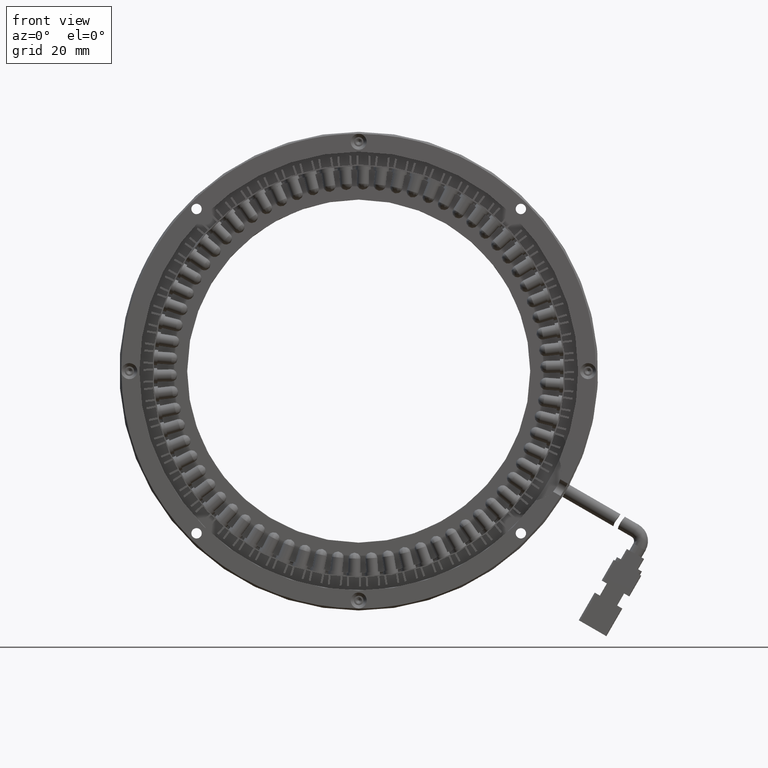
[diagram: clean part render]
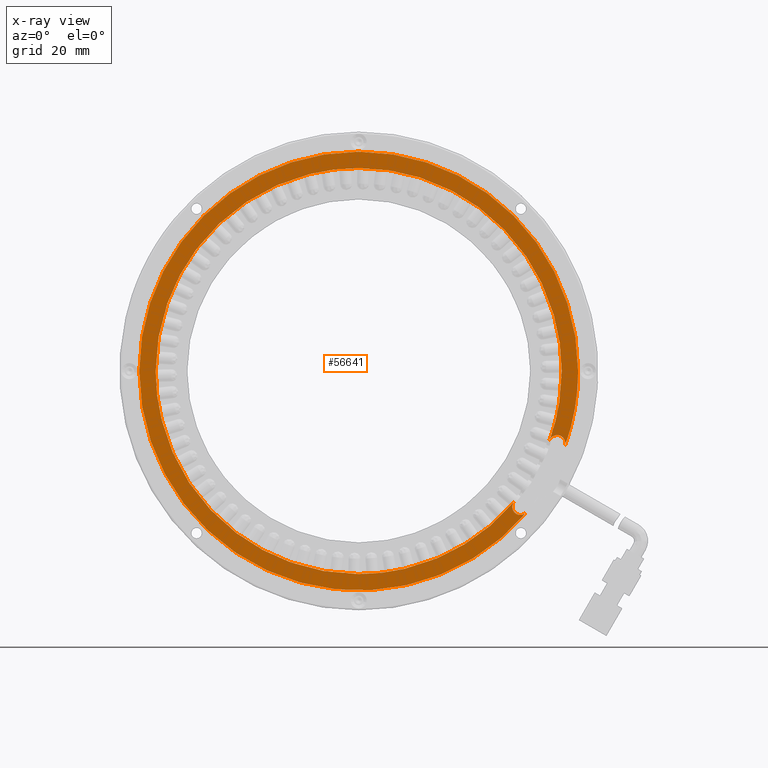
[diagram: x-ray — body ghosted, one internal face saturated and labeled with its STEP entity id]
A machine part, front view, then the same camera in x-ray: the body is ghosted and one INTERNAL B-rep face — a face not visible from any outside direction — is saturated and labeled: STEP entity #56641.
In plain terms, the highlighted planar face has unit normal (0, -1, 0).
Its self-contained STEP definition (entity closure, byte-faithful):
#64 = EDGE_CURVE ( 'NONE', #57160, #654, #15992, .T. ) ;
#654 = VERTEX_POINT ( 'NONE', #15483 ) ;
#1496 = CARTESIAN_POINT ( 'NONE',  ( 88.91167597810736800, 26.51889671361999800, -39.25409263351545500 ) ) ;
#1620 = CARTESIAN_POINT ( 'NONE',  ( 105.7969494481962400, 26.51889671361999800, -16.09159333941204700 ) ) ;
#1715 = CARTESIAN_POINT ( 'NONE',  ( 56.45624510954652200, 26.51889671361703900, -50.89999999999999900 ) ) ;
#1724 = EDGE_CURVE ( 'NONE', #13976, #8057, #43283, .T. ) ;
#1733 = EDGE_CURVE ( 'NONE', #16982, #17960, #57884, .T. ) ;
#2255 = EDGE_CURVE ( 'NONE', #13976, #7872, #56747, .T. ) ;
#2461 = ORIENTED_EDGE ( 'NONE', *, *, #8498, .T. ) ;
#2920 = CARTESIAN_POINT ( 'NONE',  ( 106.3261792178825700, 26.51889671361999800, -10.29540515301082200 ) ) ;
#3148 = CARTESIAN_POINT ( 'NONE',  ( 95.32237032638940400, 26.51889671362000200, -32.86749842980808000 ) ) ;
#3467 = CARTESIAN_POINT ( 'NONE',  ( 25.40616750947226200, 26.51889671361999100, 40.46986761288341900 ) ) ;
#3584 = CARTESIAN_POINT ( 'NONE',  ( 108.2629940726218200, 26.51889671361625000, -18.10996659951811300 ) ) ;
#3980 = ORIENTED_EDGE ( 'NONE', *, *, #54321, .F. ) ;
#4871 = CARTESIAN_POINT ( 'NONE',  ( 10.70644750498303900, 26.51889671361999800, -22.55824240564128000 ) ) ;
#6294 = VERTEX_POINT ( 'NONE', #54013 ) ;
#6437 = EDGE_CURVE ( 'NONE', #56907, #53072, #30428, .T. ) ;
#6511 = CARTESIAN_POINT ( 'NONE',  ( 84.44530148395654100, 26.51889671361999800, -42.55410091418872300 ) ) ;
#6634 = CARTESIAN_POINT ( 'NONE',  ( 106.2129693801686300, 26.51889671361549400, -16.05996658908999900 ) ) ;
#7268 = CARTESIAN_POINT ( 'NONE',  ( 107.3562518457098800, 26.51889671361706700, 4.670248026143931300E-010 ) ) ;
#7323 = CARTESIAN_POINT ( 'NONE',  ( 107.3562008130526700, 26.51889671361999800, 1.666455289235170100 ) ) ;
#7335 = CARTESIAN_POINT ( 'NONE',  ( 107.2744866105402800, 26.51889671361999800, 3.331847257112134000 ) ) ;
#7459 = CARTESIAN_POINT ( 'NONE',  ( 106.9479367558927800, 26.51889671362000200, 6.646161897768612500 ) ) ;
#7476 = CARTESIAN_POINT ( 'NONE',  ( 106.7029969966896200, 26.51889671361999800, 8.297855721284209500 ) ) ;
#7616 = CARTESIAN_POINT ( 'NONE',  ( 106.0534228182083900, 26.51889671362000200, 11.56325347238492900 ) ) ;
#7691 = CARTESIAN_POINT ( 'NONE',  ( 105.6475732304488000, 26.51889671361999500, 13.18320469791620500 ) ) ;
#7830 = CARTESIAN_POINT ( 'NONE',  ( 104.6809622507520700, 26.51889671362000200, 16.36981925736114700 ) ) ;
#7872 = VERTEX_POINT ( 'NONE', #30927 ) ;
#7893 = CARTESIAN_POINT ( 'NONE',  ( 104.1188513475901900, 26.51889671361999800, 17.94038577706800900 ) ) ;
#7908 = CARTESIAN_POINT ( 'NONE',  ( 102.8437276067713200, 26.51889671362000200, 21.01895412697521700 ) ) ;
#7977 = CARTESIAN_POINT ( 'NONE',  ( 105.2387383753806300, 26.51889671361999800, -14.60417290471351100 ) ) ;
#7993 = CARTESIAN_POINT ( 'NONE',  ( 96.62844504270351800, 26.51889671361999800, -36.08560393289999300 ) ) ;
#8046 = CARTESIAN_POINT ( 'NONE',  ( 102.1322153879976300, 26.51889671361999500, 22.52331600292138300 ) ) ;
#8057 = VERTEX_POINT ( 'NONE', #51946 ) ;
#8109 = CARTESIAN_POINT ( 'NONE',  ( 100.5595965003141400, 26.51889671361999500, 25.46536390588529700 ) ) ;
#8184 = CARTESIAN_POINT ( 'NONE',  ( 99.70370530092894500, 26.51889671361999800, 26.89335504278859200 ) ) ;
#8329 = CARTESIAN_POINT ( 'NONE',  ( 5.556245109549984700, 26.51889671361847100, -5.260106464506403600E-012 ) ) ;
#8331 = CARTESIAN_POINT ( 'NONE',  ( 97.85275939107180000, 26.51889671362000200, 29.66327168743788400 ) ) ;
#8389 = CARTESIAN_POINT ( 'NONE',  ( 96.85871171428804900, 26.51889671361999800, 31.00377232226369600 ) ) ;
#8413 = B_SPLINE_CURVE_WITH_KNOTS ( 'NONE', 3,
 ( #8329, #42899, #47941, #18324, #52906, #23230, #57871, #28192, #62812, #33176, #3467, #38151, #8536, #43103, #13547, #48150, #18545, #53119, #23440, #58088 ),
 .UNSPECIFIED., .F., .F.,
 ( 4, 2, 2, 2, 2, 2, 2, 2, 2, 4 ),
 ( 0.5000000000000000000, 0.5625000000000000000, 0.6250000000000000000, 0.6875000000000000000, 0.7500000000000000000, 0.8125000000000000000, 0.8750000000000000000, 0.9375000000000000000, 0.9687500000000000000, 1.000000000000000000 ),
 .UNSPECIFIED. ) ;
#8461 = CARTESIAN_POINT ( 'NONE',  ( 94.74633405153107900, 26.51889671362000200, 33.57758869319515300 ) ) ;
#8498 = EDGE_CURVE ( 'NONE', #54955, #16982, #38663, .T. ) ;
#8524 = CARTESIAN_POINT ( 'NONE',  ( 93.62473146255430800, 26.51889671361999800, 34.81509095276935300 ) ) ;
#8536 = CARTESIAN_POINT ( 'NONE',  ( 33.89803467176491100, 26.51889671361999800, 45.74980730221788900 ) ) ;
#8539 = CARTESIAN_POINT ( 'NONE',  ( 91.27043481988675900, 26.51889671361999800, 37.16939900917218200 ) ) ;
#8593 = CARTESIAN_POINT ( 'NONE',  ( 90.03346181228931800, 26.51889671362000200, 38.29036378274679500 ) ) ;
#8658 = CARTESIAN_POINT ( 'NONE',  ( 108.2213692306013500, 26.51889671361999800, -18.58573237121041500 ) ) ;
#8676 = ORIENTED_EDGE ( 'NONE', *, *, #16716, .T. ) ;
#8678 = CARTESIAN_POINT ( 'NONE',  ( 87.45868745237682200, 26.51889671362000600, 40.40351379886799100 ) ) ;
#8738 = CARTESIAN_POINT ( 'NONE',  ( 86.12016373316362200, 26.51889671362000200, 41.39609968301202500 ) ) ;
#8753 = CARTESIAN_POINT ( 'NONE',  ( 83.34815160613703700, 26.51889671361999800, 43.24833604363151100 ) ) ;
#8808 = CARTESIAN_POINT ( 'NONE',  ( 81.92029611412967000, 26.51889671362000200, 44.10415437209533700 ) ) ;
#8822 = CARTESIAN_POINT ( 'NONE',  ( 78.98088627312654400, 26.51889671362000200, 45.67519132533117000 ) ) ;
#8902 = CARTESIAN_POINT ( 'NONE',  ( 77.47361066575641100, 26.51889671362000600, 46.38820226874730700 ) ) ;
#9048 = CARTESIAN_POINT ( 'NONE',  ( 74.39672999791444900, 26.51889671361999800, 47.66257905183898200 ) ) ;
#9252 = CARTESIAN_POINT ( 'NONE',  ( 72.82459506337231400, 26.51889671362000200, 48.22517476861667500 ) ) ;
#9320 = CARTESIAN_POINT ( 'NONE',  ( 69.63857196180636300, 26.51889671361999500, 49.19161618714368700 ) ) ;
#9398 = CARTESIAN_POINT ( 'NONE',  ( 68.01859964645936400, 26.51889671361999500, 49.59733465117089000 ) ) ;
#9535 = CARTESIAN_POINT ( 'NONE',  ( 64.75260245585306500, 26.51889671361999500, 50.24703753962068500 ) ) ;
#9613 = CARTESIAN_POINT ( 'NONE',  ( 63.10249768488622400, 26.51889671361999500, 50.49167047696528200 ) ) ;
#9677 = CARTESIAN_POINT ( 'NONE',  ( 56.45624510953188500, 26.51889671361704600, 50.90000000000001300 ) ) ;
#9709 = CARTESIAN_POINT ( 'NONE',  ( 49.80849226404254900, 26.51889671362000600, -50.49155327858623800 ) ) ;
#9925 = CARTESIAN_POINT ( 'NONE',  ( 7.184622262506801200, 26.51889671361999800, -13.19944935610017100 ) ) ;
#10174 = CARTESIAN_POINT ( 'NONE',  ( 59.78654486201143200, 26.51889671362000600, 50.81833409539307700 ) ) ;
#10460 = CARTESIAN_POINT ( 'NONE',  ( 58.12378614070481600, 26.51889671362000600, 50.90000000000001300 ) ) ;
#10760 = CARTESIAN_POINT ( 'NONE',  ( 5.556245109549984700, 26.51889671361847100, -5.260106464506403600E-012 ) ) ;
#11427 = CARTESIAN_POINT ( 'NONE',  ( 104.3584792415676800, 26.51889671361999800, -17.21133734924919900 ) ) ;
#11529 = CARTESIAN_POINT ( 'NONE',  ( 79.64621202074329200, 26.51889671361999800, -45.34825482861585000 ) ) ;
#11665 = EDGE_LOOP ( 'NONE', ( #38328, #52175, #2461, #18839, #8676, #3980, #56246, #15040, #63176, #24809, #54303, #42104, #60865 ) ) ;
#11872 = B_SPLINE_CURVE_WITH_KNOTS ( 'NONE', 3,
 ( #21286, #50884, #60866, #31160, #1496, #36143, #6511, #41093, #11529, #46153, #16524, #51107, #21497, #56073, #26419, #61071, #31370, #1715 ),
 .UNSPECIFIED., .F., .F.,
 ( 4, 2, 2, 2, 2, 2, 2, 2, 4 ),
 ( 0.0000000000000000000, 0.1250000000000000000, 0.2500000000000000000, 0.3750000000000000000, 0.5000000000000000000, 0.6250000000000000000, 0.7500000000000000000, 0.8750000000000000000, 1.000000000000000000 ),
 .UNSPECIFIED. ) ;
#12986 = CARTESIAN_POINT ( 'NONE',  ( 104.2865995075451200, 26.51889671361615100, -17.40882529527371900 ) ) ;
#13547 = CARTESIAN_POINT ( 'NONE',  ( 43.25682899989948300, 26.51889671362000600, 49.27162612192815100 ) ) ;
#13858 = B_SPLINE_CURVE_WITH_KNOTS ( 'NONE', 3,
 ( #47380, #52355, #27669, #62261, #32624, #2920, #37572, #7977, #42570, #12986 ),
 .UNSPECIFIED., .F., .F.,
 ( 4, 2, 2, 2, 4 ),
 ( 0.8181776711582123800, 0.8636332533686592600, 0.9090888355791062500, 0.9545444177895531200, 1.000000000000000000 ),
 .UNSPECIFIED. ) ;
#13976 = VERTEX_POINT ( 'NONE', #21953 ) ;
#14638 = CARTESIAN_POINT ( 'NONE',  ( 56.45624510954652200, 26.51889671361703900, -50.89999999999999900 ) ) ;
#14727 = CARTESIAN_POINT ( 'NONE',  ( 43.25678297674848200, 26.51889671362000600, -49.27168707802127300 ) ) ;
#14938 = CARTESIAN_POINT ( 'NONE',  ( 5.556277853956411100, 26.51889671362000200, -3.333375449674135000 ) ) ;
#15040 = ORIENTED_EDGE ( 'NONE', *, *, #1724, .F. ) ;
#15300 = CARTESIAN_POINT ( 'NONE',  ( 54.78937442624786800, 26.51889671362000200, -50.89999999999999100 ) ) ;
#15483 = CARTESIAN_POINT ( 'NONE',  ( 107.3562518457098800, 26.51889671361706700, 4.670248026143931300E-010 ) ) ;
#15788 = CARTESIAN_POINT ( 'NONE',  ( 56.45624510954999000, 26.51889671361700400, 0.0000000000000000000 ) ) ;
#15992 = B_SPLINE_CURVE_WITH_KNOTS ( 'NONE', 3,
 ( #9677, #10460, #10174, #9613, #9535, #9398, #9320, #9252, #9048, #8902, #8822, #8808, #8753, #8738, #8678, #8593, #8539, #8524, #8461, #8389, #8331, #8184, #8109, #8046, #7908, #7893, #7830, #7691, #7616, #7476, #7459, #7335, #7323, #7268 ),
 .UNSPECIFIED., .F., .F.,
 ( 4, 2, 2, 2, 2, 2, 2, 2, 2, 2, 2, 2, 2, 2, 2, 2, 4 ),
 ( 0.0000000000000000000, 0.05113610444738812800, 0.1022722088947764800, 0.1534083133421648100, 0.2045444177895531800, 0.2556805222369415400, 0.3068166266843298500, 0.3579527311317182200, 0.4090888355791065800, 0.4602249400264948300, 0.5113610444738830900, 0.5624971489212713400, 0.6136332533686594800, 0.6647693578160477300, 0.7159054622634358800, 0.7670415667108242400, 0.8181776711582123800 ),
 .UNSPECIFIED. ) ;
#16281 = B_SPLINE_CURVE_WITH_KNOTS ( 'NONE', 3,
 ( #3584, #53029, #8658, #43230 ),
 .UNSPECIFIED., .F., .F.,
 ( 4, 4 ),
 ( 0.8182654502144257600, 1.000000000000000000 ),
 .UNSPECIFIED. ) ;
#16524 = CARTESIAN_POINT ( 'NONE',  ( 74.57145591769544500, 26.51889671361999800, -47.60333936523537100 ) ) ;
#16716 = EDGE_CURVE ( 'NONE', #17960, #29081, #16281, .T. ) ;
#16757 = CARTESIAN_POINT ( 'NONE',  ( 97.01829837268245200, 26.51889671361625000, -36.08560393289998600 ) ) ;
#16850 = CARTESIAN_POINT ( 'NONE',  ( 97.31801767398215500, 26.51889671361999800, -36.08560393289999300 ) ) ;
#16982 = VERTEX_POINT ( 'NONE', #20616 ) ;
#17056 = CARTESIAN_POINT ( 'NONE',  ( 98.58868948107824800, 26.51889671361639600, -35.35331853275853600 ) ) ;
#17111 = CARTESIAN_POINT ( 'NONE',  ( 98.39651065991415600, 26.51889671361999800, -35.58234833331888300 ) ) ;
#17127 = CARTESIAN_POINT ( 'NONE',  ( 98.15526934994197500, 26.51889671362000200, -35.76726199441731800 ) ) ;
#17632 = CARTESIAN_POINT ( 'NONE',  ( 104.2865995075451200, 26.51889671361615100, -17.40882529527371900 ) ) ;
#17960 = VERTEX_POINT ( 'NONE', #33328 ) ;
#17986 = CARTESIAN_POINT ( 'NONE',  ( 95.58828173832982600, 26.51889671361999800, -35.55536931266763600 ) ) ;
#18324 = CARTESIAN_POINT ( 'NONE',  ( 7.184541814664910000, 26.51889671361999800, 13.19939738584012500 ) ) ;
#18412 = EDGE_CURVE ( 'NONE', #654, #54955, #13858, .T. ) ;
#18545 = CARTESIAN_POINT ( 'NONE',  ( 49.80832919296634000, 26.51889671361999800, 50.49150431269133300 ) ) ;
#18839 = ORIENTED_EDGE ( 'NONE', *, *, #1733, .T. ) ;
#19736 = CARTESIAN_POINT ( 'NONE',  ( 33.89797764238963400, 26.51889671362000200, -45.74985810894369800 ) ) ;
#20616 = CARTESIAN_POINT ( 'NONE',  ( 106.2129693801686300, 26.51889671361549400, -16.05996658908999900 ) ) ;
#20793 = DIRECTION ( 'NONE',  ( 1.000000000000000000, 6.308085367188390000E-017, 0.0000000000000000000 ) ) ;
#21286 = CARTESIAN_POINT ( 'NONE',  ( 95.44790726429383200, 26.51889671361582800, -32.71788933304571900 ) ) ;
#21407 = CARTESIAN_POINT ( 'NONE',  ( 104.4588099106009100, 26.51889671362000200, -17.02863101656479100 ) ) ;
#21497 = CARTESIAN_POINT ( 'NONE',  ( 69.28135844239513100, 26.51889671361999800, -49.29254760452393900 ) ) ;
#21953 = CARTESIAN_POINT ( 'NONE',  ( 98.58868948107824800, 26.51889671361639600, -35.35331853275853600 ) ) ;
#21994 = PLANE ( 'NONE',  #50702 ) ;
#22276 = EDGE_CURVE ( 'NONE', #53072, #57160, #8413, .T. ) ;
#22407 = CARTESIAN_POINT ( 'NONE',  ( 56.45624510954999000, 26.51889671361700400, 0.0000000000000000000 ) ) ;
#22913 = CARTESIAN_POINT ( 'NONE',  ( 94.99566523257891500, 26.51889671361999800, -34.54901367626943900 ) ) ;
#23230 = CARTESIAN_POINT ( 'NONE',  ( 10.70635846373137800, 26.51889671361999800, 22.55820712775216200 ) ) ;
#23440 = CARTESIAN_POINT ( 'NONE',  ( 54.78904028817538600, 26.51889671362000200, 50.90000000000001300 ) ) ;
#24618 = CARTESIAN_POINT ( 'NONE',  ( 25.40607387520768200, 26.51889671362000900, -40.46988774913664600 ) ) ;
#24809 = ORIENTED_EDGE ( 'NONE', *, *, #28459, .T. ) ;
#26331 = CARTESIAN_POINT ( 'NONE',  ( 104.8651616375936000, 26.51889671361999800, -16.55119259836519400 ) ) ;
#26419 = CARTESIAN_POINT ( 'NONE',  ( 63.83898750012691200, 26.51889671361999800, -50.39577935919173500 ) ) ;
#26709 = EDGE_CURVE ( 'NONE', #6294, #56907, #11872, .T. ) ;
#26957 = DIRECTION ( 'NONE',  ( 0.0000000000000000000, -1.000000000000000000, 0.0000000000000000000 ) ) ;
#27393 = DIRECTION ( 'NONE',  ( 1.000000000000000000, 6.308085367188390000E-017, 0.0000000000000000000 ) ) ;
#27669 = CARTESIAN_POINT ( 'NONE',  ( 107.2917835663834700, 26.51889671362000200, -2.959691800880913400 ) ) ;
#27851 = CIRCLE ( 'NONE', #39015, 55.00000000000000000 ) ;
#27870 = CARTESIAN_POINT ( 'NONE',  ( 95.01120421857626800, 26.51889671361999800, -33.57493728174080900 ) ) ;
#28192 = CARTESIAN_POINT ( 'NONE',  ( 15.98631760021237000, 26.51889671361999800, 31.05011762157835900 ) ) ;
#28459 = EDGE_CURVE ( 'NONE', #7872, #6294, #63684, .T. ) ;
#28744 = EDGE_CURVE ( 'NONE', #8057, #55232, #27851, .T. ) ;
#29081 = VERTEX_POINT ( 'NONE', #43784 ) ;
#29601 = CARTESIAN_POINT ( 'NONE',  ( 18.10741077590907400, 26.51889671361999800, -33.63468229911563200 ) ) ;
#30428 = B_SPLINE_CURVE_WITH_KNOTS ( 'NONE', 3,
 ( #54854, #15300, #60083, #9709, #44305, #14727, #49312, #19736, #54297, #24618, #59301, #29601, #64195, #34554, #4871, #39528, #9925, #44530, #14938, #49517 ),
 .UNSPECIFIED., .F., .F.,
 ( 4, 2, 2, 2, 2, 2, 2, 2, 2, 4 ),
 ( 0.0000000000000000000, 0.03124999999999993100, 0.06249999999999986100, 0.1249999999999998900, 0.1874999999999999200, 0.2499999999999999400, 0.3124999999999999400, 0.3750000000000000000, 0.4375000000000000000, 0.5000000000000000000 ),
 .UNSPECIFIED. ) ;
#30927 = CARTESIAN_POINT ( 'NONE',  ( 97.01829837268245200, 26.51889671361625000, -36.08560393289998600 ) ) ;
#31160 = CARTESIAN_POINT ( 'NONE',  ( 90.31626377400986900, 26.51889671361999800, -38.04920325931077200 ) ) ;
#31281 = CARTESIAN_POINT ( 'NONE',  ( 105.3960955342362800, 26.51889671361999800, -16.21810034070021800 ) ) ;
#31370 = CARTESIAN_POINT ( 'NONE',  ( 58.30904260226729700, 26.51889671362000200, -50.89999999999999900 ) ) ;
#32624 = CARTESIAN_POINT ( 'NONE',  ( 106.8401199260077700, 26.51889671361999800, -7.380743873133185100 ) ) ;
#32854 = CARTESIAN_POINT ( 'NONE',  ( 95.22037118512243100, 26.51889671361999800, -33.03152639169043400 ) ) ;
#33176 = CARTESIAN_POINT ( 'NONE',  ( 22.82151335499334300, 26.51889671361999100, 38.34878950799058800 ) ) ;
#33328 = CARTESIAN_POINT ( 'NONE',  ( 108.2629940726218200, 26.51889671361625000, -18.10996659951811300 ) ) ;
#34258 = CARTESIAN_POINT ( 'NONE',  ( 108.0037992282614700, 26.51889671361999800, -17.07644587213456000 ) ) ;
#34554 = CARTESIAN_POINT ( 'NONE',  ( 12.28247187426224900, 26.51889671361999500, -25.50691487160292000 ) ) ;
#36143 = CARTESIAN_POINT ( 'NONE',  ( 85.97272771408704300, 26.51889671361999800, -41.50927740812717600 ) ) ;
#36178 = CARTESIAN_POINT ( 'NONE',  ( 108.2629940726218200, 26.51889671361625000, -18.10996659951811300 ) ) ;
#36262 = CARTESIAN_POINT ( 'NONE',  ( 108.2630753145470200, 26.51889671361999800, -17.84216602957619800 ) ) ;
#36268 = CARTESIAN_POINT ( 'NONE',  ( 106.0024317445241500, 26.51889671361999800, -16.05996658908999900 ) ) ;
#36381 = CARTESIAN_POINT ( 'NONE',  ( 56.45624510953188500, 26.51889671361704600, 50.90000000000001300 ) ) ;
#36387 = CARTESIAN_POINT ( 'NONE',  ( 108.2100366687376400, 26.51889671361999800, -17.57448026055307400 ) ) ;
#36457 = CARTESIAN_POINT ( 'NONE',  ( 107.8521202247297500, 26.51889671361999800, -16.84984560682197200 ) ) ;
#36567 = FACE_OUTER_BOUND ( 'NONE', #11665, .T. ) ;
#36586 = CARTESIAN_POINT ( 'NONE',  ( 107.4732465400562800, 26.51889671361999800, -16.47111114605650800 ) ) ;
#36725 = CARTESIAN_POINT ( 'NONE',  ( 107.2448028913066100, 26.51889671361999800, -16.31846984271663100 ) ) ;
#36740 = CARTESIAN_POINT ( 'NONE',  ( 106.2129693801686300, 26.51889671361549400, -16.05996658908999900 ) ) ;
#36796 = DIRECTION ( 'NONE',  ( 1.000000000000000000, 6.308085367188390000E-017, 0.0000000000000000000 ) ) ;
#36869 = DIRECTION ( 'NONE',  ( -3.154042683594195600E-017, 1.000000000000000000, -0.0000000000000000000 ) ) ;
#36884 = CARTESIAN_POINT ( 'NONE',  ( 56.45624510954999000, 26.51889671361700400, 0.0000000000000000000 ) ) ;
#37086 = CARTESIAN_POINT ( 'NONE',  ( 106.4823319166383400, 26.51889671361999800, -16.05996658908999900 ) ) ;
#37101 = CARTESIAN_POINT ( 'NONE',  ( 106.7495667950427000, 26.51889671362000200, -16.11324002181363800 ) ) ;
#37572 = CARTESIAN_POINT ( 'NONE',  ( 106.0048858447456900, 26.51889671361999800, -11.74451062858221700 ) ) ;
#37801 = CARTESIAN_POINT ( 'NONE',  ( 95.44790726429383200, 26.51889671361582800, -32.71788933304571900 ) ) ;
#38151 = CARTESIAN_POINT ( 'NONE',  ( 30.94927298822892700, 26.51889671361999800, 44.17373891951346100 ) ) ;
#38328 = ORIENTED_EDGE ( 'NONE', *, *, #64, .T. ) ;
#38663 = B_SPLINE_CURVE_WITH_KNOTS ( 'NONE', 3,
 ( #46052, #11427, #21407, #55976, #26331, #60986, #31281, #1620, #36268, #6634 ),
 .UNSPECIFIED., .F., .F.,
 ( 4, 2, 2, 2, 4 ),
 ( 0.0000000000000000000, 0.2500000000000000000, 0.5000000000000000000, 0.7500000000000000000, 1.000000000000000000 ),
 .UNSPECIFIED. ) ;
#39015 = AXIS2_PLACEMENT_3D ( 'NONE', #15788, #50356, #20793 ) ;
#39366 = CARTESIAN_POINT ( 'NONE',  ( 111.4562451095500000, 26.51889671361700700, 0.0000000000000000000 ) ) ;
#39528 = CARTESIAN_POINT ( 'NONE',  ( 8.155106304472967700, 26.51889671361999800, -16.39893100913700500 ) ) ;
#41093 = CARTESIAN_POINT ( 'NONE',  ( 81.27830641589346800, 26.51889671361999800, -44.47592752031182100 ) ) ;
#42104 = ORIENTED_EDGE ( 'NONE', *, *, #6437, .T. ) ;
#42570 = CARTESIAN_POINT ( 'NONE',  ( 104.7936675078781700, 26.51889671361999800, -16.01566741425359600 ) ) ;
#42582 = CARTESIAN_POINT ( 'NONE',  ( 97.01829837268245200, 26.51889671361625000, -36.08560393289998600 ) ) ;
#42899 = CARTESIAN_POINT ( 'NONE',  ( 5.556212365143554000, 26.51889671361999800, 3.333375449663616300 ) ) ;
#43103 = CARTESIAN_POINT ( 'NONE',  ( 40.05728213256652000, 26.51889671362000200, 48.30112910743011400 ) ) ;
#43230 = CARTESIAN_POINT ( 'NONE',  ( 108.1393392527727400, 26.51889671361639600, -18.81110788290745400 ) ) ;
#43283 = CIRCLE ( 'NONE', #59335, 55.00000000000000000 ) ;
#43784 = CARTESIAN_POINT ( 'NONE',  ( 108.1393392527727400, 26.51889671361639600, -18.81110788290745400 ) ) ;
#44305 = CARTESIAN_POINT ( 'NONE',  ( 48.16083009003381200, 26.51889671361999800, -50.24711261977888900 ) ) ;
#44530 = CARTESIAN_POINT ( 'NONE',  ( 5.883926411546610800, 26.51889671361999800, -6.660745425153272900 ) ) ;
#46052 = CARTESIAN_POINT ( 'NONE',  ( 104.2865995075451200, 26.51889671361615100, -17.40882529527371900 ) ) ;
#46153 = CARTESIAN_POINT ( 'NONE',  ( 76.28881724357131600, 26.51889671361999800, -46.91387789170980900 ) ) ;
#47380 = CARTESIAN_POINT ( 'NONE',  ( 107.3562518457098800, 26.51889671361706700, 4.670248026143931300E-010 ) ) ;
#47616 = CARTESIAN_POINT ( 'NONE',  ( 96.24538661284874800, 26.51889671362000200, -35.97374348096554500 ) ) ;
#47941 = CARTESIAN_POINT ( 'NONE',  ( 5.884006859384389700, 26.51889671362000200, 6.660797395392687100 ) ) ;
#48150 = CARTESIAN_POINT ( 'NONE',  ( 48.16080707844287900, 26.51889671361999800, 50.24714309782238800 ) ) ;
#48916 = CARTESIAN_POINT ( 'NONE',  ( 97.61406226859531900, 26.51889671361999800, -36.01980779823271200 ) ) ;
#49312 = CARTESIAN_POINT ( 'NONE',  ( 40.05733916196127400, 26.51889671361999800, -48.30107830071237600 ) ) ;
#49517 = CARTESIAN_POINT ( 'NONE',  ( 5.556245109549984700, 26.51889671361847100, -5.260106464506403600E-012 ) ) ;
#50356 = DIRECTION ( 'NONE',  ( -3.154042683594195600E-017, 1.000000000000000000, -0.0000000000000000000 ) ) ;
#50702 = AXIS2_PLACEMENT_3D ( 'NONE', #56589, #26957, #61574 ) ;
#50884 = CARTESIAN_POINT ( 'NONE',  ( 94.25717763691881100, 26.51889671361999800, -34.13694564429200500 ) ) ;
#51107 = CARTESIAN_POINT ( 'NONE',  ( 71.06357186928032400, 26.51889671361999800, -48.79414781736165500 ) ) ;
#51946 = CARTESIAN_POINT ( 'NONE',  ( 1.456245109549989100, 26.51889671361700000, 6.735557395310442600E-015 ) ) ;
#52175 = ORIENTED_EDGE ( 'NONE', *, *, #18412, .T. ) ;
#52355 = CARTESIAN_POINT ( 'NONE',  ( 107.3563099333608900, 26.51889671361999800, -1.481334884097189600 ) ) ;
#52572 = CARTESIAN_POINT ( 'NONE',  ( 95.32506958597103600, 26.51889671361999800, -35.25492906266791200 ) ) ;
#52906 = CARTESIAN_POINT ( 'NONE',  ( 8.155195345716574500, 26.51889671361999800, 16.39896628700667600 ) ) ;
#53029 = CARTESIAN_POINT ( 'NONE',  ( 108.2629685270748800, 26.51889671361999800, -18.34787773702494500 ) ) ;
#53072 = VERTEX_POINT ( 'NONE', #10760 ) ;
#53119 = CARTESIAN_POINT ( 'NONE',  ( 53.12601614058372900, 26.51889671361999800, 50.81830086253827300 ) ) ;
#54013 = CARTESIAN_POINT ( 'NONE',  ( 95.44790726429383200, 26.51889671361582800, -32.71788933304571900 ) ) ;
#54297 = CARTESIAN_POINT ( 'NONE',  ( 30.94936662251100400, 26.51889671361999800, -44.17371878327195800 ) ) ;
#54303 = ORIENTED_EDGE ( 'NONE', *, *, #26709, .T. ) ;
#54321 = EDGE_CURVE ( 'NONE', #55232, #29081, #57565, .T. ) ;
#54847 = AXIS2_PLACEMENT_3D ( 'NONE', #22407, #57030, #27393 ) ;
#54854 = CARTESIAN_POINT ( 'NONE',  ( 56.45624510954652200, 26.51889671361703900, -50.89999999999999900 ) ) ;
#54955 = VERTEX_POINT ( 'NONE', #17632 ) ;
#55232 = VERTEX_POINT ( 'NONE', #39366 ) ;
#55976 = CARTESIAN_POINT ( 'NONE',  ( 104.7143801546050700, 26.51889671361999800, -16.69538030267937900 ) ) ;
#56073 = CARTESIAN_POINT ( 'NONE',  ( 65.66468447562010600, 26.51889671361999800, -50.09438592028164500 ) ) ;
#56246 = ORIENTED_EDGE ( 'NONE', *, *, #28744, .F. ) ;
#56589 = CARTESIAN_POINT ( 'NONE',  ( 113.6891704186999900, 26.51889671361999800, -57.19999999999999600 ) ) ;
#56641 = ADVANCED_FACE ( 'NONE', ( #36567 ), #21994, .T. ) ;
#56747 = B_SPLINE_CURVE_WITH_KNOTS ( 'NONE', 3,
 ( #17056, #17111, #17127, #48916, #16850, #16757 ),
 .UNSPECIFIED., .F., .F.,
 ( 4, 2, 4 ),
 ( 0.0000000000000000000, 0.5000000000000000000, 1.000000000000000000 ),
 .UNSPECIFIED. ) ;
#56907 = VERTEX_POINT ( 'NONE', #14638 ) ;
#57030 = DIRECTION ( 'NONE',  ( -3.154042683594195600E-017, 1.000000000000000000, -0.0000000000000000000 ) ) ;
#57160 = VERTEX_POINT ( 'NONE', #36381 ) ;
#57538 = CARTESIAN_POINT ( 'NONE',  ( 94.93510078349844200, 26.51889671361999500, -34.15420115306560000 ) ) ;
#57565 = CIRCLE ( 'NONE', #54847, 55.00000000000000000 ) ;
#57871 = CARTESIAN_POINT ( 'NONE',  ( 12.28256608648485400, 26.51889671362000600, 25.50693209981170300 ) ) ;
#57884 = B_SPLINE_CURVE_WITH_KNOTS ( 'NONE', 3,
 ( #36740, #37086, #37101, #36725, #36586, #36457, #34258, #36387, #36262, #36178 ),
 .UNSPECIFIED., .F., .F.,
 ( 4, 2, 2, 2, 4 ),
 ( 0.0000000000000000000, 0.2045663625536064400, 0.4091327251072128800, 0.6136990876608192600, 0.8182654502144257600 ),
 .UNSPECIFIED. ) ;
#58088 = CARTESIAN_POINT ( 'NONE',  ( 56.45624510953188500, 26.51889671361704600, 50.90000000000001300 ) ) ;
#59301 = CARTESIAN_POINT ( 'NONE',  ( 22.82160911841152300, 26.51889671362000200, -38.34878802568606900 ) ) ;
#59335 = AXIS2_PLACEMENT_3D ( 'NONE', #36884, #36869, #36796 ) ;
#60083 = CARTESIAN_POINT ( 'NONE',  ( 53.12585306952841800, 26.51889671361999800, -50.81825189664540700 ) ) ;
#60865 = ORIENTED_EDGE ( 'NONE', *, *, #22276, .T. ) ;
#60866 = CARTESIAN_POINT ( 'NONE',  ( 92.99225552372956800, 26.51889671362000200, -35.48744807836808900 ) ) ;
#60986 = CARTESIAN_POINT ( 'NONE',  ( 105.2091137337671400, 26.51889671361999800, -16.31021719822989600 ) ) ;
#61071 = CARTESIAN_POINT ( 'NONE',  ( 60.15615057892195200, 26.51889671361999800, -50.79915587183834400 ) ) ;
#61574 = DIRECTION ( 'NONE',  ( 0.0000000000000000000, 0.0000000000000000000, 1.000000000000000000 ) ) ;
#62261 = CARTESIAN_POINT ( 'NONE',  ( 107.0335753954914800, 26.51889671361999800, -5.910449698887409100 ) ) ;
#62485 = CARTESIAN_POINT ( 'NONE',  ( 95.06344849588772700, 26.51889671361999800, -33.38842004568898900 ) ) ;
#62812 = CARTESIAN_POINT ( 'NONE',  ( 18.10750653931237900, 26.51889671361999500, 33.63468081679621900 ) ) ;
#63176 = ORIENTED_EDGE ( 'NONE', *, *, #2255, .T. ) ;
#63684 = B_SPLINE_CURVE_WITH_KNOTS ( 'NONE', 3,
 ( #42582, #7993, #47616, #17986, #52572, #22913, #57538, #27870, #62485, #32854, #3148, #37801 ),
 .UNSPECIFIED., .F., .F.,
 ( 4, 2, 2, 2, 2, 4 ),
 ( 0.0000000000000000000, 0.2500000000000000000, 0.5000000000000000000, 0.7500000000000000000, 0.8750000000000000000, 1.000000000000000000 ),
 .UNSPECIFIED. ) ;
#64195 = CARTESIAN_POINT ( 'NONE',  ( 15.98641181244665800, 26.51889671361999800, -31.05013484980462100 ) ) ;